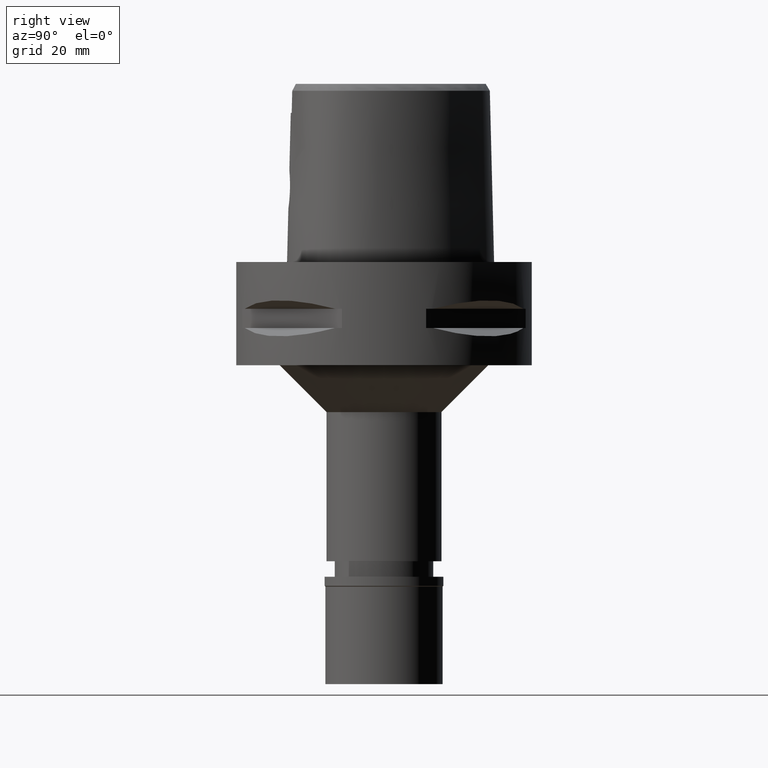
[diagram: clean part render]
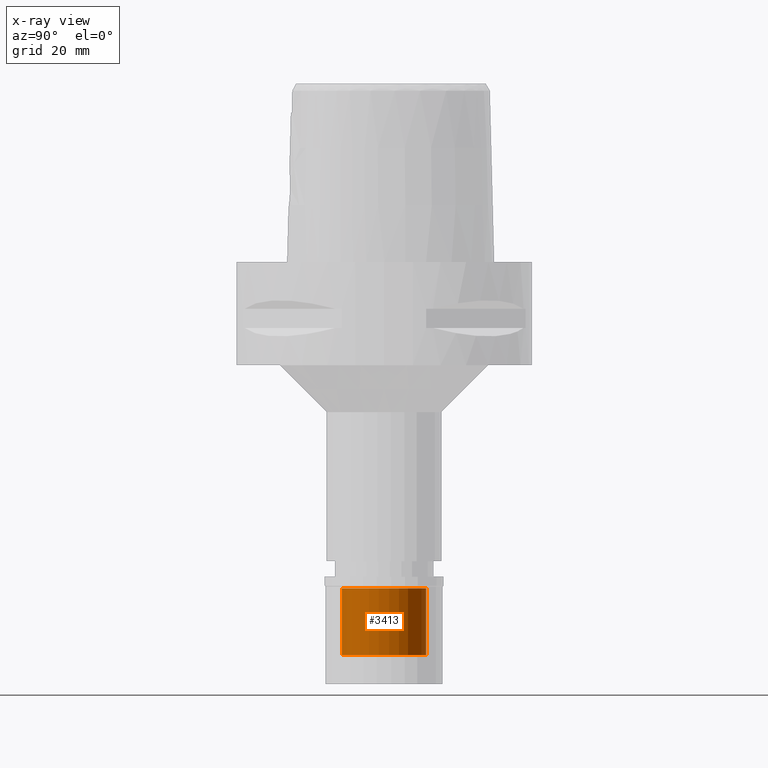
[diagram: x-ray — body ghosted, one internal face saturated and labeled with its STEP entity id]
A machine part, right view, then the same camera in x-ray: the body is ghosted and one INTERNAL B-rep face — a face not visible from any outside direction — is saturated and labeled: STEP entity #3413.
In plain terms, the highlighted cylindrical surface (partial cylindrical patch) has radius 9 mm, axis along (0, 0, -1).
Its self-contained STEP definition (entity closure, byte-faithful):
#179 = CARTESIAN_POINT ( 'NONE',  ( 0.0000000000000000000, 9.000000000000000000, -16.69999999999999929 ) ) ;
#293 = DIRECTION ( 'NONE',  ( 0.0000000000000000000, 0.0000000000000000000, 1.000000000000000000 ) ) ;
#396 = CARTESIAN_POINT ( 'NONE',  ( 0.0000000000000000000, -9.000000000000000000, -2.500000000000000000 ) ) ;
#446 = DIRECTION ( 'NONE',  ( 0.0000000000000000000, 1.000000000000000000, 0.0000000000000000000 ) ) ;
#462 = EDGE_LOOP ( 'NONE', ( #3954, #3897, #4761, #3875 ) ) ;
#488 = AXIS2_PLACEMENT_3D ( 'NONE', #4288, #2015, #446 ) ;
#501 = CARTESIAN_POINT ( 'NONE',  ( 0.0000000000000000000, 9.000000000000000000, -2.500000000000000000 ) ) ;
#695 = VERTEX_POINT ( 'NONE', #501 ) ;
#700 = VERTEX_POINT ( 'NONE', #2192 ) ;
#902 = DIRECTION ( 'NONE',  ( 0.0000000000000000000, -1.000000000000000000, 0.0000000000000000000 ) ) ;
#997 = FACE_OUTER_BOUND ( 'NONE', #462, .T. ) ;
#1134 = AXIS2_PLACEMENT_3D ( 'NONE', #4334, #4282, #902 ) ;
#1368 = VERTEX_POINT ( 'NONE', #3196 ) ;
#1374 = CARTESIAN_POINT ( 'NONE',  ( 0.0000000000000000000, 0.0000000000000000000, 0.0000000000000000000 ) ) ;
#1724 = DIRECTION ( 'NONE',  ( 0.0000000000000000000, 0.0000000000000000000, 1.000000000000000000 ) ) ;
#1747 = EDGE_CURVE ( 'NONE', #2428, #695, #3293, .T. ) ;
#1858 = LINE ( 'NONE', #2593, #4002 ) ;
#2015 = DIRECTION ( 'NONE',  ( 0.0000000000000000000, 0.0000000000000000000, -1.000000000000000000 ) ) ;
#2070 = CYLINDRICAL_SURFACE ( 'NONE', #2910, 9.000000000000000000 ) ;
#2192 = CARTESIAN_POINT ( 'NONE',  ( 0.0000000000000000000, 9.000000000000000000, -16.69999999999999929 ) ) ;
#2369 = EDGE_CURVE ( 'NONE', #700, #1368, #2899, .T. ) ;
#2428 = VERTEX_POINT ( 'NONE', #396 ) ;
#2593 = CARTESIAN_POINT ( 'NONE',  ( 0.0000000000000000000, -9.000000000000000000, -16.69999999999999929 ) ) ;
#2896 = DIRECTION ( 'NONE',  ( 0.0000000000000000000, 0.0000000000000000000, -1.000000000000000000 ) ) ;
#2899 = CIRCLE ( 'NONE', #488, 9.000000000000000000 ) ;
#2910 = AXIS2_PLACEMENT_3D ( 'NONE', #1374, #2896, #4691 ) ;
#3014 = EDGE_CURVE ( 'NONE', #700, #695, #3615, .T. ) ;
#3196 = CARTESIAN_POINT ( 'NONE',  ( 0.0000000000000000000, -9.000000000000000000, -16.69999999999999929 ) ) ;
#3293 = CIRCLE ( 'NONE', #1134, 9.000000000000000000 ) ;
#3413 = ADVANCED_FACE ( 'NONE', ( #997 ), #2070, .F. ) ;
#3615 = LINE ( 'NONE', #179, #3698 ) ;
#3698 = VECTOR ( 'NONE', #1724, 1000.000000000000000 ) ;
#3875 = ORIENTED_EDGE ( 'NONE', *, *, #3014, .F. ) ;
#3897 = ORIENTED_EDGE ( 'NONE', *, *, #4879, .T. ) ;
#3954 = ORIENTED_EDGE ( 'NONE', *, *, #2369, .T. ) ;
#4002 = VECTOR ( 'NONE', #293, 1000.000000000000000 ) ;
#4282 = DIRECTION ( 'NONE',  ( 0.0000000000000000000, 0.0000000000000000000, 1.000000000000000000 ) ) ;
#4288 = CARTESIAN_POINT ( 'NONE',  ( 0.0000000000000000000, 0.0000000000000000000, -16.69999999999999929 ) ) ;
#4334 = CARTESIAN_POINT ( 'NONE',  ( 0.0000000000000000000, 0.0000000000000000000, -2.500000000000000000 ) ) ;
#4691 = DIRECTION ( 'NONE',  ( 0.0000000000000000000, -1.000000000000000000, 0.0000000000000000000 ) ) ;
#4761 = ORIENTED_EDGE ( 'NONE', *, *, #1747, .T. ) ;
#4879 = EDGE_CURVE ( 'NONE', #1368, #2428, #1858, .T. ) ;